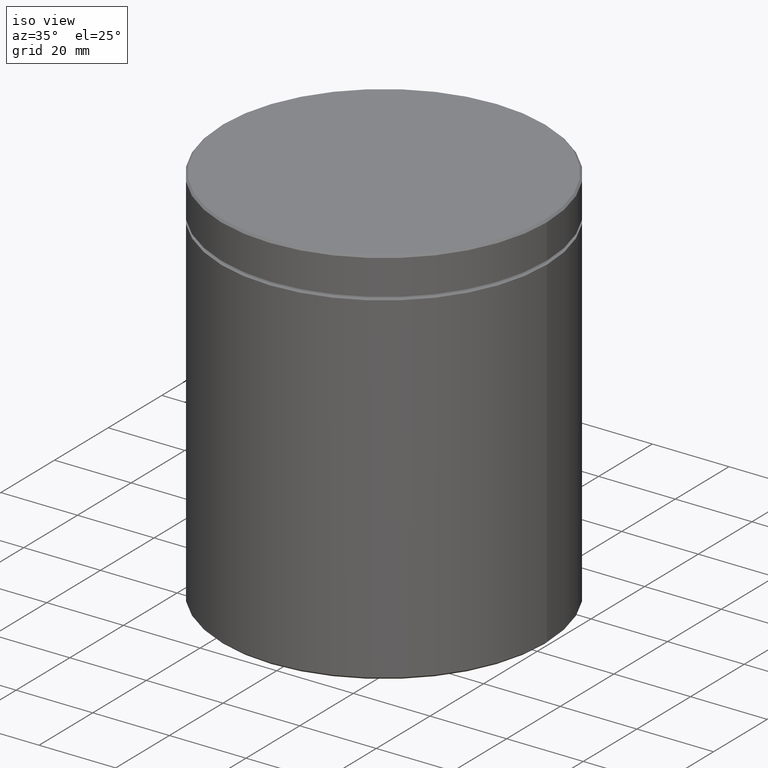
[diagram: clean part render]
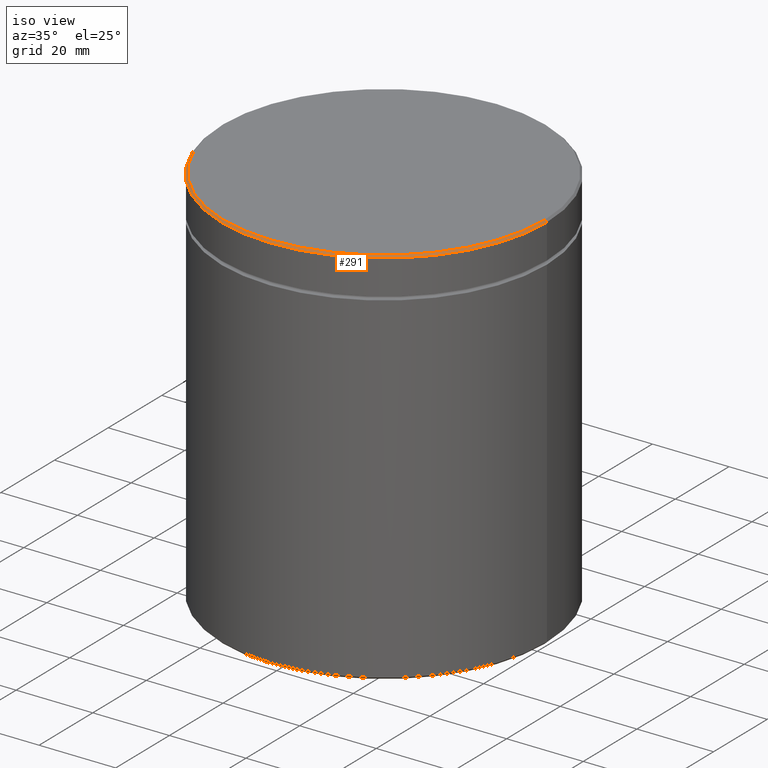
[diagram: same view with one face highlighted and labeled with its STEP entity id]
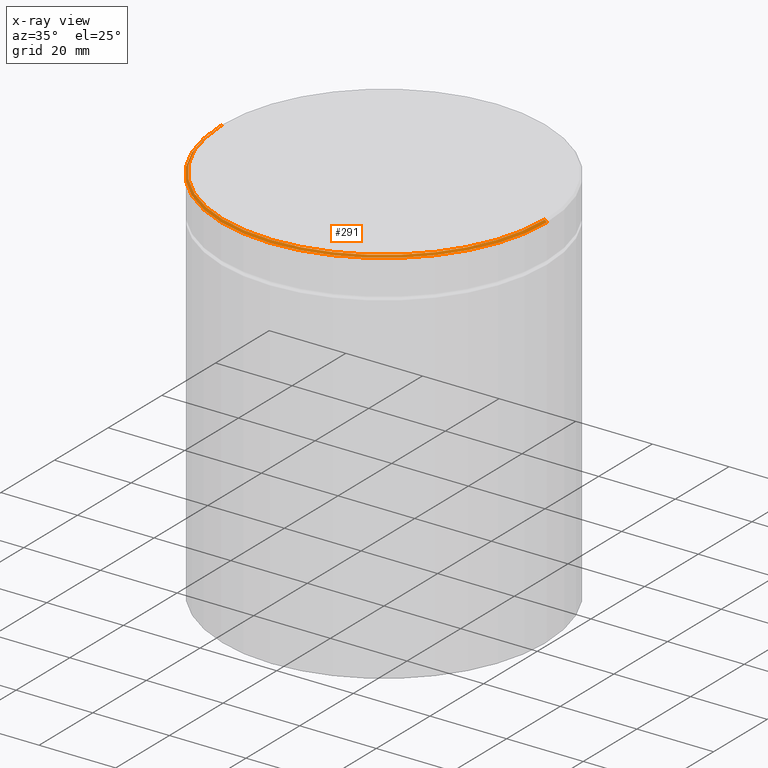
[diagram: x-ray of the same camera — body ghosted, the highlighted face saturated]
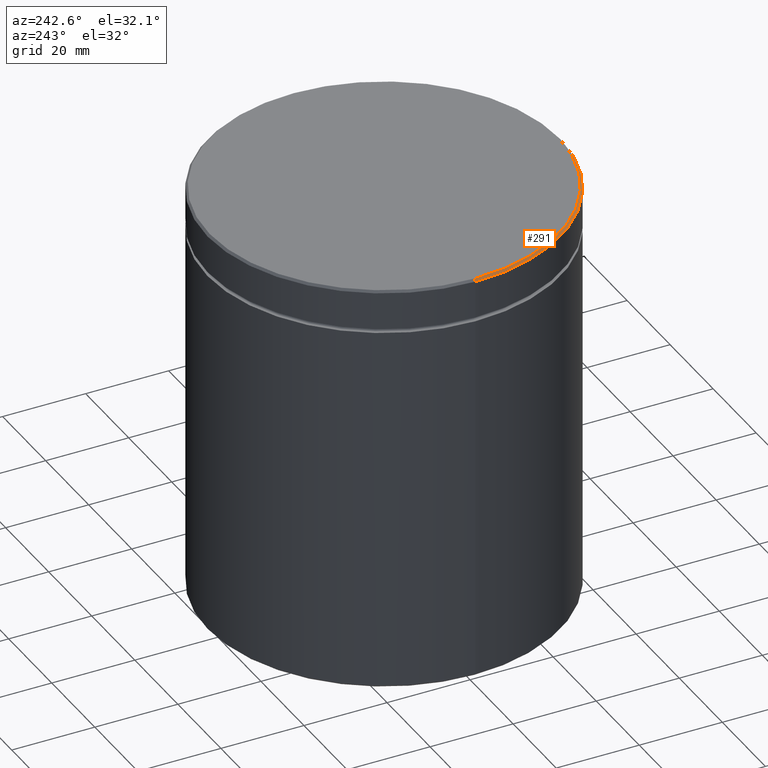
[diagram: same view with one face highlighted and labeled with its STEP entity id]
A machine part, iso view. The second image highlights one B-rep face of the part: STEP entity #291.
The next image is the same camera in x-ray: the body ghosted, the highlighted face saturated — about 0% of this face is hidden behind the body in this view.
A second angle (auxiliary view) of the same face is appended — the face is thin or edge-on in the first view.
In plain terms, the highlighted conical surface has half-angle 45 deg.
Its self-contained STEP definition (entity closure, byte-faithful):
#8 = DIRECTION ( 'NONE',  ( -1.000000000000000000, 0.000000000000000000, 0.000000000000000000 ) ) ;
#47 = CARTESIAN_POINT ( 'NONE',  ( 0.000000000000000000, 0.000000000000000000, -0.5000000000000004441 ) ) ;
#48 = ORIENTED_EDGE ( 'NONE', *, *, #401, .T. ) ;
#54 = LINE ( 'NONE', #403, #117 ) ;
#61 = ORIENTED_EDGE ( 'NONE', *, *, #503, .F. ) ;
#70 = AXIS2_PLACEMENT_3D ( 'NONE', #114, #346, #75 ) ;
#75 = DIRECTION ( 'NONE',  ( 1.000000000000000000, 0.000000000000000000, 0.000000000000000000 ) ) ;
#93 = CARTESIAN_POINT ( 'NONE',  ( 0.000000000000000000, 0.000000000000000000, 0.000000000000000000 ) ) ;
#101 = DIRECTION ( 'NONE',  ( 1.000000000000000000, 0.000000000000000000, 0.000000000000000000 ) ) ;
#103 = CIRCLE ( 'NONE', #70, 41.99999999999999289 ) ;
#111 = ORIENTED_EDGE ( 'NONE', *, *, #320, .F. ) ;
#114 = CARTESIAN_POINT ( 'NONE',  ( 0.000000000000000000, 0.000000000000000000, 0.000000000000000000 ) ) ;
#116 = VERTEX_POINT ( 'NONE', #391 ) ;
#117 = VECTOR ( 'NONE', #238, 1000.000000000000000 ) ;
#128 = AXIS2_PLACEMENT_3D ( 'NONE', #47, #451, #101 ) ;
#170 = AXIS2_PLACEMENT_3D ( 'NONE', #93, #278, #8 ) ;
#172 = CARTESIAN_POINT ( 'NONE',  ( -42.50000000000000000, 5.204748896376250896E-15, -0.5000000000000004441 ) ) ;
#173 = ORIENTED_EDGE ( 'NONE', *, *, #178, .F. ) ;
#178 = EDGE_CURVE ( 'NONE', #368, #490, #378, .T. ) ;
#186 = EDGE_LOOP ( 'NONE', ( #111, #61, #48, #173 ) ) ;
#192 = CONICAL_SURFACE ( 'NONE', #170, 41.99999999999999289, 0.7853981633974552734 ) ;
#203 = DIRECTION ( 'NONE',  ( -0.7071067811865524577, 0.000000000000000000, -0.7071067811865426878 ) ) ;
#208 = CARTESIAN_POINT ( 'NONE',  ( 42.50000000000000000, 0.000000000000000000, -0.5000000000000004441 ) ) ;
#238 = DIRECTION ( 'NONE',  ( 0.7071067811865524577, 8.659560562354994488E-17, -0.7071067811865426878 ) ) ;
#252 = CARTESIAN_POINT ( 'NONE',  ( -41.99999999999999289, 0.000000000000000000, 0.000000000000000000 ) ) ;
#256 = LINE ( 'NONE', #252, #471 ) ;
#278 = DIRECTION ( 'NONE',  ( 0.000000000000000000, 0.000000000000000000, -1.000000000000000000 ) ) ;
#291 = ADVANCED_FACE ( 'NONE', ( #538 ), #192, .T. ) ;
#316 = VERTEX_POINT ( 'NONE', #326 ) ;
#320 = EDGE_CURVE ( 'NONE', #116, #368, #54, .T. ) ;
#326 = CARTESIAN_POINT ( 'NONE',  ( -41.99999999999999289, 0.000000000000000000, 0.000000000000000000 ) ) ;
#346 = DIRECTION ( 'NONE',  ( -0.000000000000000000, -0.000000000000000000, 1.000000000000000000 ) ) ;
#368 = VERTEX_POINT ( 'NONE', #208 ) ;
#378 = CIRCLE ( 'NONE', #128, 42.50000000000000000 ) ;
#391 = CARTESIAN_POINT ( 'NONE',  ( 41.99999999999999289, 5.174132726397566320E-15, 0.000000000000000000 ) ) ;
#401 = EDGE_CURVE ( 'NONE', #316, #490, #256, .T. ) ;
#403 = CARTESIAN_POINT ( 'NONE',  ( 41.99999999999999289, 5.143516556418882533E-15, 0.000000000000000000 ) ) ;
#451 = DIRECTION ( 'NONE',  ( 0.000000000000000000, 0.000000000000000000, -1.000000000000000000 ) ) ;
#471 = VECTOR ( 'NONE', #203, 1000.000000000000000 ) ;
#490 = VERTEX_POINT ( 'NONE', #172 ) ;
#503 = EDGE_CURVE ( 'NONE', #316, #116, #103, .T. ) ;
#538 = FACE_OUTER_BOUND ( 'NONE', #186, .T. ) ;